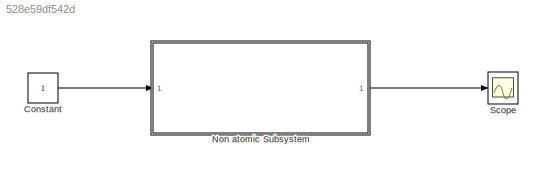
MODEL slx_528e59df542d
KIND model
CONFIG AbsTol = auto
CONFIG EnableMultiTasking = off
CONFIG FixedStep = auto
CONFIG MaxStep = auto
CONFIG MinStep = auto
CONFIG RelTol = 1e-3
CONFIG SampleTimeConstraint = Unconstrained
CONFIG SolverName = VariableStepAuto
CONFIG StartTime = 0.0
CONFIG StopTime = 10.0
BLOCK [Constant] Constant
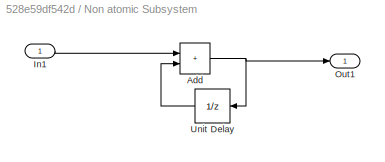
BLOCK [SubSystem] Non atomic Subsystem
BLOCK [Sum] Non atomic Subsystem/Add
  IconShape = rectangular
BLOCK [Inport] Non atomic Subsystem/In1
BLOCK [Outport] Non atomic Subsystem/Out1
BLOCK [UnitDelay] Non atomic Subsystem/Unit Delay
  HasFrameUpgradeWarning = on
  NameLocation = top
  SampleTime = -1
BLOCK [Scope] Scope
  Floating = off
  NumInputPorts = 1
  ScopeSpecificationString = Simulink.scopes.TimeScopeBlockCfg('CurrentConfiguration', extmgr.ConfigurationSet(extmgr.Configuration('Core','General UI',true),extmgr.Configuration('Core','Source UI',true),extmgr.Configuration('Sources','WiredSimulink',true),extmgr.Configuration('Visuals','Time Domain',true,'SerializedDisplays',{struct('MinYLimReal','-5.25','MaxYLimReal','57.25','YLabelReal','','MinYLimMag','0.00000','MaxYLimMa...<+1354ch>
LINE Constant:1 -> Non atomic Subsystem:1
NET Non atomic Subsystem/Add:1 -> Non atomic Subsystem/Out1:1, Non atomic Subsystem/Unit Delay:1
LINE Non atomic Subsystem/In1:1 -> Non atomic Subsystem/Add:1
LINE Non atomic Subsystem/Unit Delay:1 -> Non atomic Subsystem/Add:2
LINE Non atomic Subsystem:1 -> Scope:1
note: NET lines group one-source signal fan-out (src -> all destinations, sorted); 1:1 wires keep LINE
